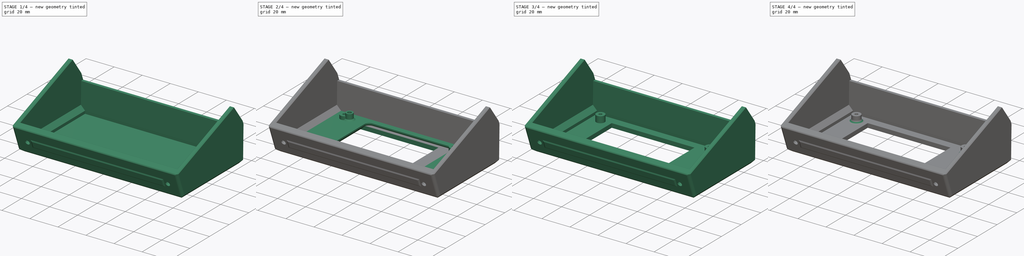
[diagram: build sequence overview — one tinted view per stage of 4, left to right]
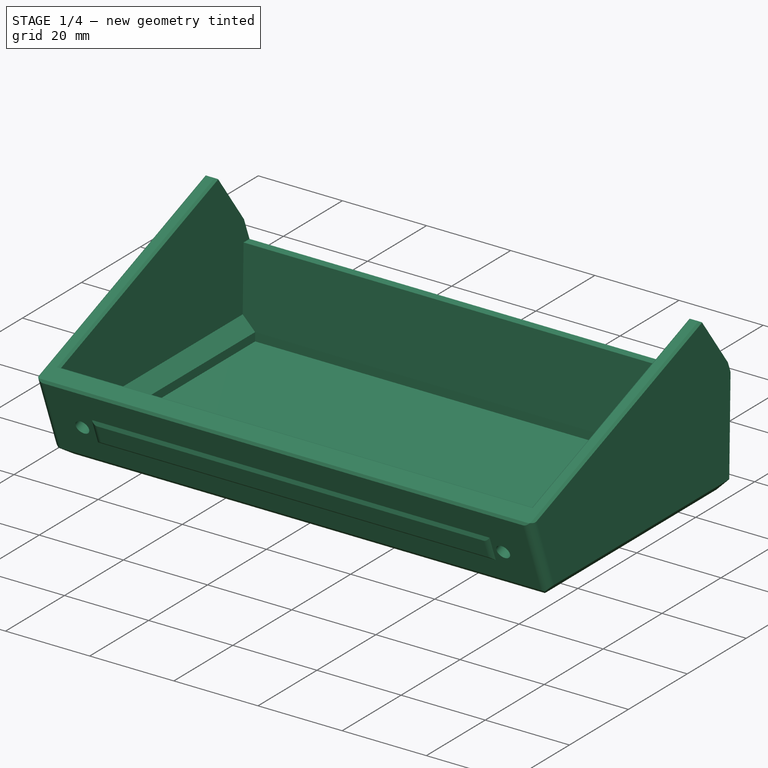
[diagram: stage 1 of 4 — iso view after this stage's code; geometry added in this stage tinted green]
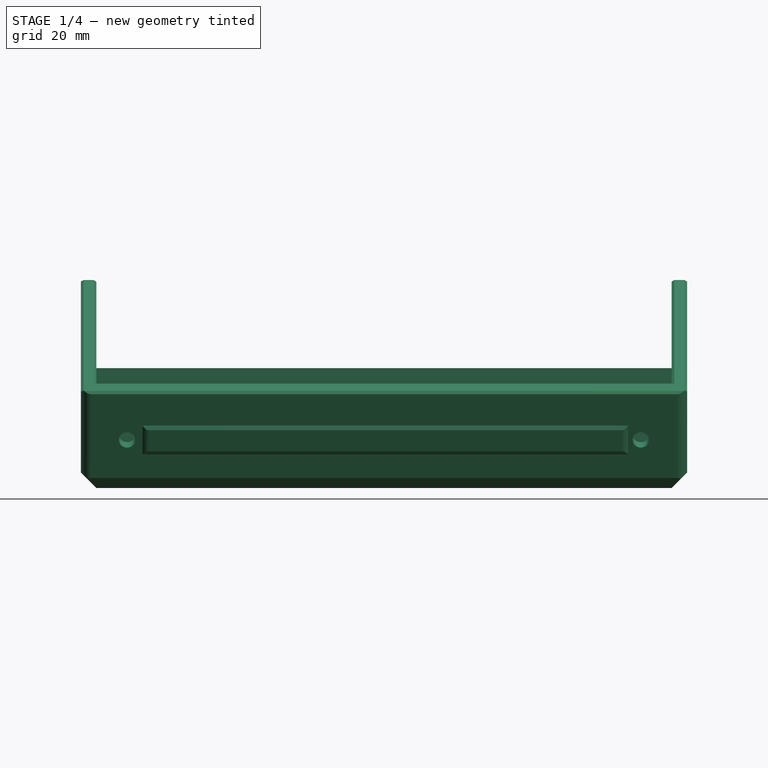
[diagram: stage 1 of 4 — front view after this stage's code; geometry added in this stage tinted green]
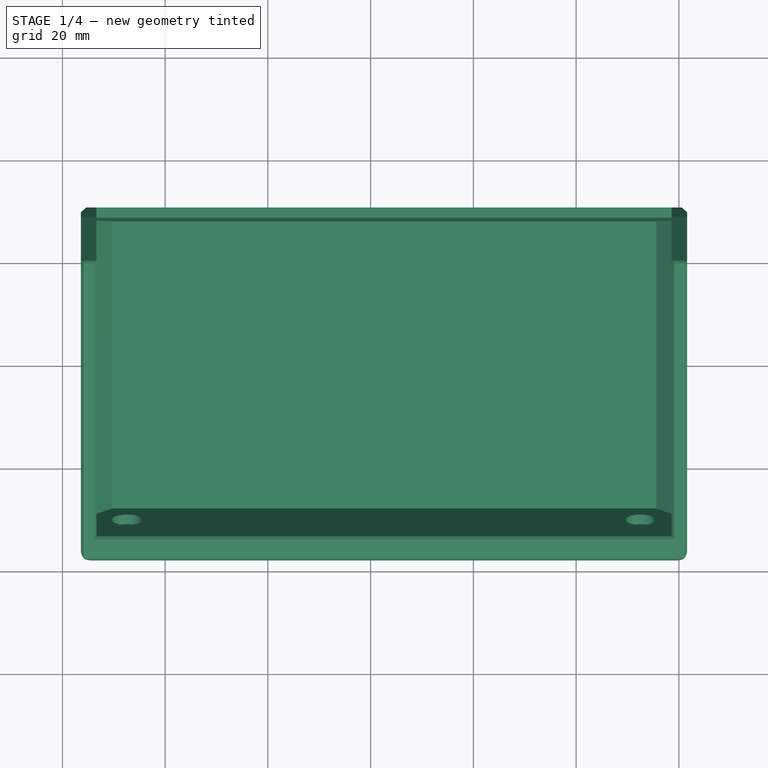
[diagram: stage 1 of 4 — top view after this stage's code; geometry added in this stage tinted green]
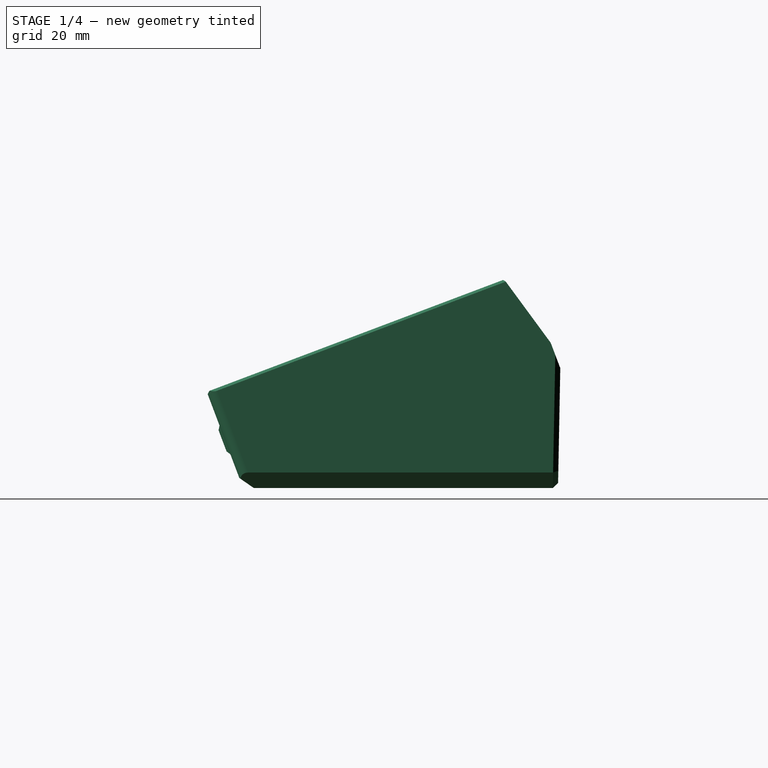
[diagram: stage 1 of 4 — right view after this stage's code; geometry added in this stage tinted green]
FCSTD DOCUMENT  (FreeCAD 0.22R36958 (Git))
Label: cyd housing for voron
License: All rights reserved
LicenseURL: http://en.wikipedia.org/wiki/All_rights_reserved
objects: Sketcher::SketchObject×12, PartDesign::Pocket×5, PartDesign::Pad×4, Part::Feature×3, PartDesign::FeatureBase×2, PartDesign::Body×2, PartDesign::Fillet×1, PartDesign::Chamfer×1
note: 41 computed .brp shape members not serialized (recipe doc carries the construction recipe); baked Part::Feature solids carry a one-line shape summary decoded from their .brp

FEATURE [Sketcher::SketchObject] Sketch013
  AttachmentSupport = -> [Pocket]
  FullyConstrained = true
  MapMode = 5
  Placement = pos=(0,-9.31488,24.6625) rot=(1,0,0;0.361131rad)
FEATURE [PartDesign::Body] Body003  label="my cyd housing"
  BaseFeature = -> Part__Feature
  Group = -> [BaseFeature001,Sketch008,Pocket002,Sketch009,Pad002,Sketch010,Sketch011,Pocket003,Sketch012,Pad003,Fillet001,Chamfer001,Sketch,Pocket,Sketch013]
  Origin = -> Origin003
  Tip = -> Pocket
FEATURE [Part::Feature] Part__Feature067  label="CYD_HOUSING001"
  Placement = pos=(6,0,0) rot=(0,0,1;0rad)
  shape: bbox 118 x 68.82 x 40.49 mm, 100 faces (baked)
FEATURE [PartDesign::FeatureBase] BaseFeature002
  BaseFeature = -> Part__Feature067
  Suppressed = false
FEATURE [Sketcher::SketchObject] Sketch015
  AttachmentOffset = pos=(0,0,11) rot=(0,0,1;0rad)
  AttachmentSupport = -> [BaseFeature002]
  ExternalGeometry = -> [BaseFeature002]
  FullyConstrained = true
  MapMode = 5
  Placement = pos=(0,0,11) rot=(0,0,1;0rad)
  sketch-geometry (4):
    g0: LineSegment StartX=-50.4 StartY=28.1407 StartZ=0 EndX=-50.4 EndY=-27.7904 EndZ=0
    g1: LineSegment StartX=-50.4 StartY=-27.7904 StartZ=0 EndX=55.6 EndY=-27.7904 EndZ=0
    g2: LineSegment StartX=55.6 StartY=-27.7904 StartZ=0 EndX=55.6 EndY=28.1407 EndZ=0
    g3: LineSegment StartX=55.6 StartY=28.1407 StartZ=0 EndX=-50.4 EndY=28.1407 EndZ=0
  constraints (10):
    c: Coincident(g0,g1)
    c: Coincident(g1,g2)
    c: Coincident(g2,g3)
    c: Coincident(g3,g0)
    c: Vertical(g0)
    c: Vertical(g2)
    c: Horizontal(g1)
    c: Horizontal(g3)
    c: Coincident(g1,g-4)
    c: Coincident(g0,g-3)
FEATURE [PartDesign::Pocket] Pocket005
  BaseFeature = -> BaseFeature002
  Direction = (0,0,-1)
  Length = 5
  Length2 = 5
  Profile = -> Sketch015
  ReferenceAxis = -> Sketch015 [N_Axis]
  Suppressed = false
  Type = 1
FEATURE [Sketcher::SketchObject] Sketch016
  AttachmentSupport = -> [Pocket005]
  ExternalGeometry = -> [Pocket005]
  FullyConstrained = true
  MapMode = 5
  Placement = pos=(0,0,-5) rot=(1,0,0;3.14159rad)
  sketch-geometry (4):
    g0: LineSegment StartX=-53.4 StartY=29.1729 StartZ=0 EndX=-53.4 EndY=-29.0471 EndZ=0
    g1: LineSegment StartX=-53.4 StartY=-29.0471 StartZ=0 EndX=58.6 EndY=-29.0471 EndZ=0
    g2: LineSegment StartX=58.6 StartY=-29.0471 StartZ=0 EndX=58.6 EndY=29.1729 EndZ=0
    g3: LineSegment StartX=58.6 StartY=29.1729 StartZ=0 EndX=-53.4 EndY=29.1729 EndZ=0
  constraints (10):
    c: Coincident(g0,g1)
    c: Coincident(g1,g2)
    c: Coincident(g2,g3)
    c: Coincident(g3,g0)
    c: Vertical(g0)
    c: Vertical(g2)
    c: Horizontal(g1)
    c: Horizontal(g3)
    c: Coincident(g0,g-3)
    c: Coincident(g1,g-4)
FEATURE [PartDesign::Pad] Pad004
  BaseFeature = -> Pocket005
  Direction = (0,0,-1)
  Length = 3
  Length2 = 10
  Profile = -> Sketch016
  ReferenceAxis = -> Sketch016 [N_Axis]
  Reversed = true
  Suppressed = false
  Type = 0
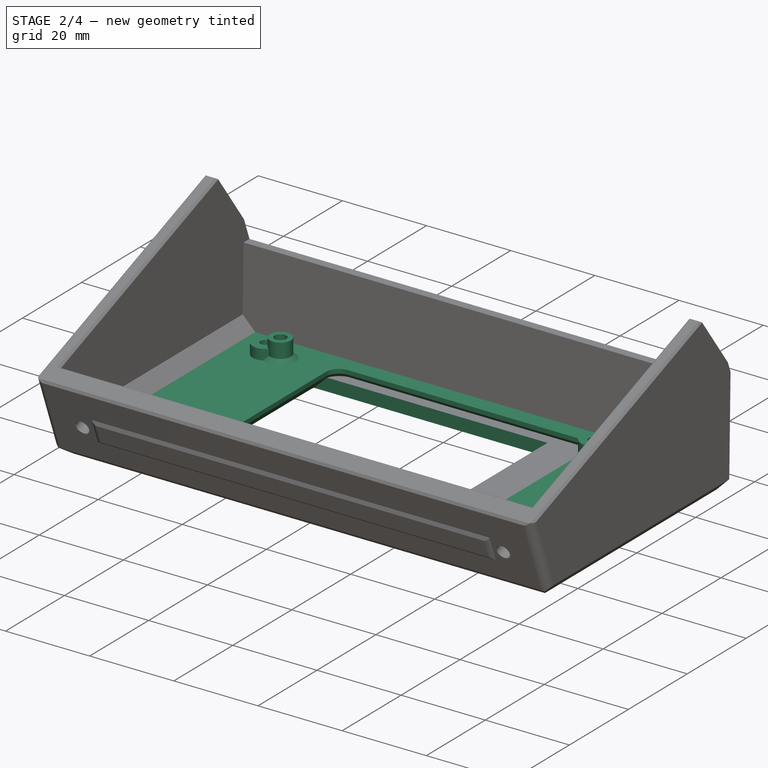
[diagram: stage 2 of 4 — iso view after this stage's code; geometry added in this stage tinted green]
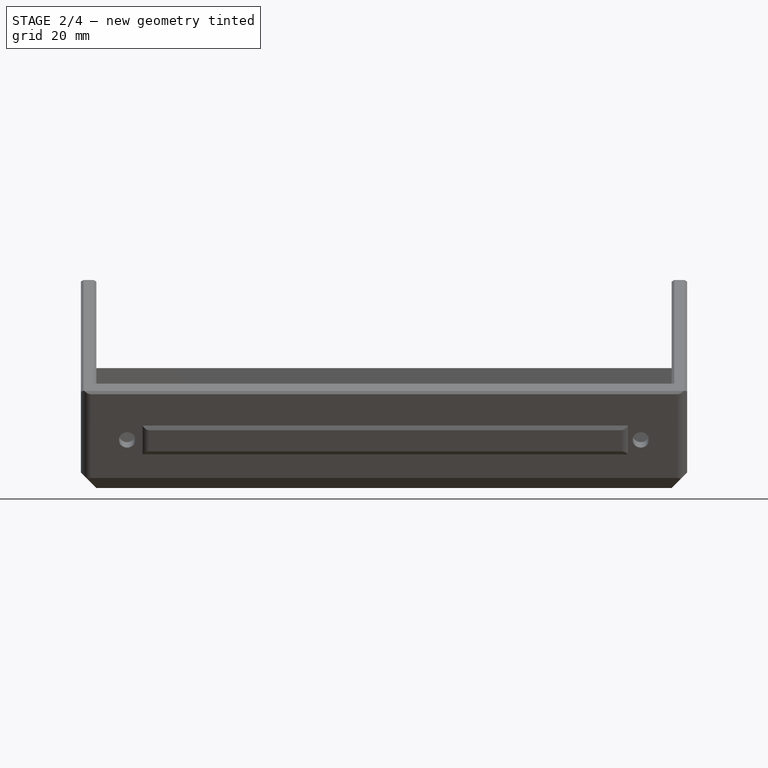
[diagram: stage 2 of 4 — front view after this stage's code; geometry added in this stage tinted green]
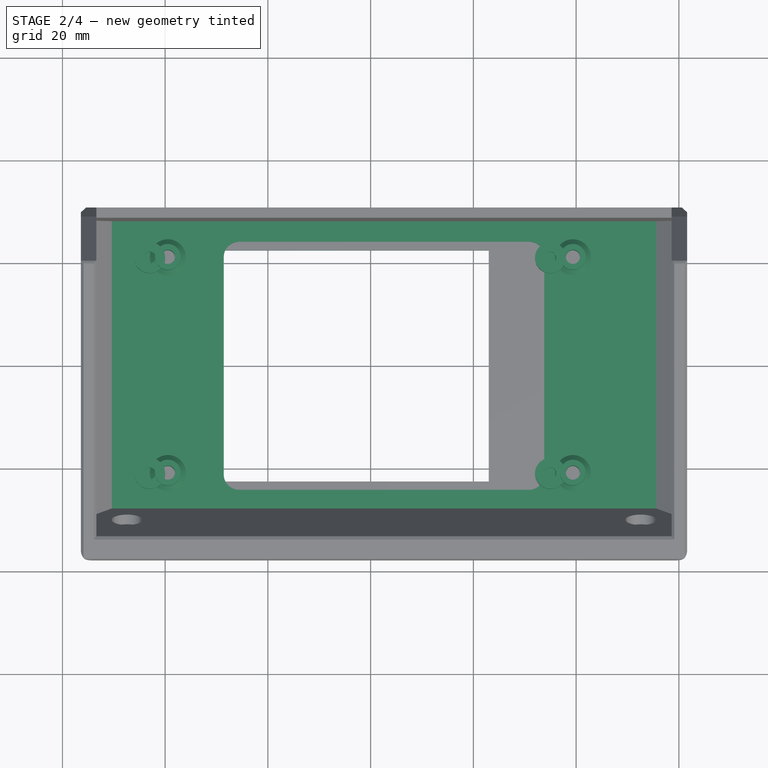
[diagram: stage 2 of 4 — top view after this stage's code; geometry added in this stage tinted green]
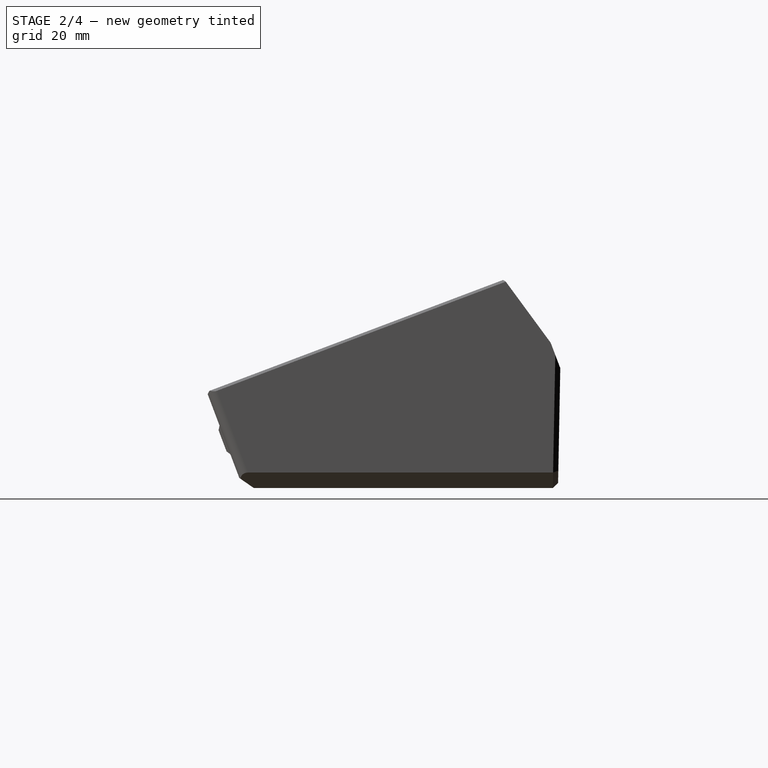
[diagram: stage 2 of 4 — right view after this stage's code; geometry added in this stage tinted green]
FEATURE [Part::Feature] Part__Feature  label="CYD_HOUSING"
  Placement = pos=(6,0,0) rot=(0,0,1;0rad)
  shape: bbox 118 x 68.82 x 40.49 mm, 100 faces (baked)
FEATURE [PartDesign::FeatureBase] BaseFeature001
  BaseFeature = -> Part__Feature
  Suppressed = false
FEATURE [Sketcher::SketchObject] Sketch017
  AttachmentOffset = pos=(0,0,4) rot=(0,0,1;0rad)
  AttachmentSupport = -> [XY_Plane004]
  FullyConstrained = true
  MapMode = 5
  Placement = pos=(0,0,4) rot=(0,0,1;0rad)
  sketch-geometry (8):
    g0: Circle CenterX=-43 CenterY=21 CenterZ=0 NormalX=0 NormalY=0 NormalZ=1 AngleXU=0 Radius=1.15
    g1: Circle CenterX=35 CenterY=21 CenterZ=0 NormalX=0 NormalY=0 NormalZ=1 AngleXU=0 Radius=1.15
    g2: Circle CenterX=35 CenterY=-21 CenterZ=0 NormalX=0 NormalY=0 NormalZ=1 AngleXU=0 Radius=1.15
    g3: Circle CenterX=-43 CenterY=-21 CenterZ=0 NormalX=0 NormalY=0 NormalZ=1 AngleXU=0 Radius=1.15
    g4: LineSegment StartX=-36 StartY=22.5 StartZ=0 EndX=-36 EndY=-22.5 EndZ=0
    g5: LineSegment StartX=-36 StartY=-22.5 StartZ=0 EndX=23 EndY=-22.5 EndZ=0
    g6: LineSegment StartX=23 StartY=-22.5 StartZ=0 EndX=23 EndY=22.5 EndZ=0
    g7: LineSegment StartX=23 StartY=22.5 StartZ=0 EndX=-36 EndY=22.5 EndZ=0
  constraints (25):
    c: Equal(g0,g3)
    c: Equal(g0,g1)
    c: Equal(g0,g2)
    c: Diameter(g0) = 2.3
    c: DistanceY(g6,g6) = 45
    c: DistanceX(g5,g5) = 59
    c: Equal(g6,g4)
    c: Equal(g7,g5)
    c: Vertical(g2,g1)
    c: Horizontal(g2,g3)
    c: DistanceX(g3,g2) = 78
    c: DistanceY(g2,g1) = 42
    c: DistanceY(g-1,g6) = 22.5
    c: Coincident(g6,g7)
    c: Vertical(g6)
    c: Vertical(g4)
    c: DistanceX(g7,g-1) = 36
    c: Coincident(g4,g7)
    c: Coincident(g5,g4)
    c: Horizontal(g7)
    c: Horizontal(g5)
    c: Vertical(g3,g0)
    c: DistanceY(g2,g-1) = 21
    c: DistanceX(g3,g-1) = 43
    c: Horizontal(g0,g1)
FEATURE [Sketcher::SketchObject] Sketch018
  AttachmentSupport = -> [XY_Plane004]
  ExternalGeometry = -> [Sketch017]
  FullyConstrained = true
  MapMode = 5
  sketch-geometry (4):
    g0: LineSegment StartX=23 StartY=-22.5 StartZ=0 EndX=23 EndY=22.5 EndZ=0
    g1: LineSegment StartX=23 StartY=22.5 StartZ=0 EndX=-36 EndY=22.5 EndZ=0
    g2: LineSegment StartX=-36 StartY=22.5 StartZ=0 EndX=-36 EndY=-22.5 EndZ=0
    g3: LineSegment StartX=-36 StartY=-22.5 StartZ=0 EndX=23 EndY=-22.5 EndZ=0
  constraints (10):
    c: Coincident(g0,g1)
    c: Coincident(g1,g2)
    c: Coincident(g2,g3)
    c: Coincident(g3,g0)
    c: Vertical(g0)
    c: Vertical(g2)
    c: Horizontal(g1)
    c: Horizontal(g3)
    c: Coincident(g0,g-5)
    c: Coincident(g1,g-6)
FEATURE [PartDesign::Pocket] Pocket006
  BaseFeature = -> Pad004
  Direction = (0,0,-1)
  Length = 5
  Length2 = 5
  Profile = -> Sketch018
  ReferenceAxis = -> Sketch018 [N_Axis]
  Suppressed = false
  Type = 0
FEATURE [Sketcher::SketchObject] Sketch019
  AttachmentOffset = pos=(0,0,-2) rot=(0,0,1;0rad)
  AttachmentSupport = -> [XY_Plane004]
  ExternalGeometry = -> [Sketch017]
  FullyConstrained = true
  MapMode = 5
  Placement = pos=(0,0,-2) rot=(0,0,1;0rad)
  sketch-geometry (8):
    g0: Circle CenterX=-43 CenterY=21 CenterZ=0 NormalX=0 NormalY=0 NormalZ=1 AngleXU=0 Radius=1.15
    g1: Circle CenterX=-43 CenterY=-21 CenterZ=0 NormalX=0 NormalY=0 NormalZ=1 AngleXU=0 Radius=1.15
    g2: Circle CenterX=35 CenterY=-21 CenterZ=0 NormalX=0 NormalY=0 NormalZ=1 AngleXU=0 Radius=1.15
    g3: Circle CenterX=35 CenterY=21 CenterZ=0 NormalX=0 NormalY=0 NormalZ=1 AngleXU=0 Radius=1.15
    g4: Circle CenterX=-43 CenterY=21 CenterZ=0 NormalX=0 NormalY=0 NormalZ=1 AngleXU=0 Radius=3
    g5: Circle CenterX=35 CenterY=21 CenterZ=0 NormalX=0 NormalY=0 NormalZ=1 AngleXU=0 Radius=3
    g6: Circle CenterX=35 CenterY=-21 CenterZ=0 NormalX=0 NormalY=0 NormalZ=1 AngleXU=0 Radius=3
    g7: Circle CenterX=-43 CenterY=-21 CenterZ=0 NormalX=0 NormalY=0 NormalZ=1 AngleXU=0 Radius=3
  constraints (24):
    c: Coincident(g0,g-3)
    c: Coincident(g1,g-5)
    c: Coincident(g2,g-6)
    c: Coincident(g3,g-4)
    c: Diameter(g-6) = 2.3
    c: Diameter(g-5) = 2.3
    c: Diameter(g-4) = 2.3
    c: Diameter(g-3) = 2.3
    c: Equal(g0,g1)
    c: Equal(g0,g2)
    c: Equal(g0,g3)
    c: Diameter(g0) = 2.3
    c: Coincident(g4,g0)
    c: Coincident(g5,g3)
    c: Coincident(g6,g2)
    c: Coincident(g7,g1)
    c: Diameter(g-3) = 2.3
    c: Diameter(g-4) = 2.3
    c: Diameter(g-5) = 2.3
    c: Diameter(g-6) = 2.3
    c: Equal(g4,g5)
    c: Equal(g4,g6)
    c: Equal(g4,g7)
    c: Diameter(g4) = 6
FEATURE [PartDesign::Pad] Pad005
  BaseFeature = -> Pocket006
  Direction = (0,0,1)
  Length = 4.5
  Length2 = 10
  Profile = -> Sketch019
  ReferenceAxis = -> Sketch019 [N_Axis]
  Suppressed = false
  Type = 0
FEATURE [PartDesign::Body] Body004  label="my cyd housing usb open"
  BaseFeature = -> Part__Feature067
  Group = -> [BaseFeature002,Sketch015,Pocket005,Sketch016,Pad004,Sketch017,Sketch018,Pocket006,Sketch019,Pad005]
  Origin = -> Origin004
  Tip = -> Pad005
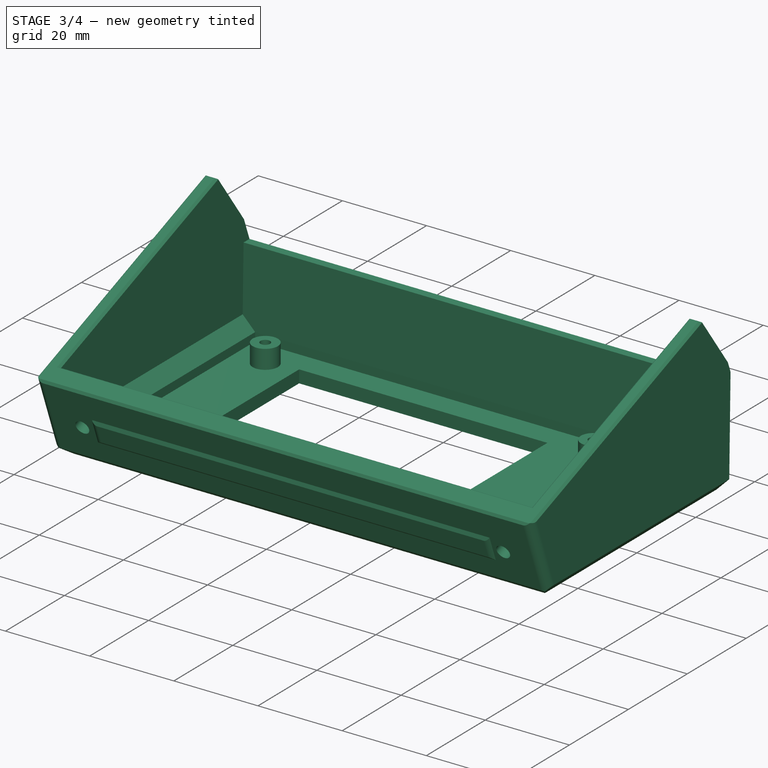
[diagram: stage 3 of 4 — iso view after this stage's code; geometry added in this stage tinted green]
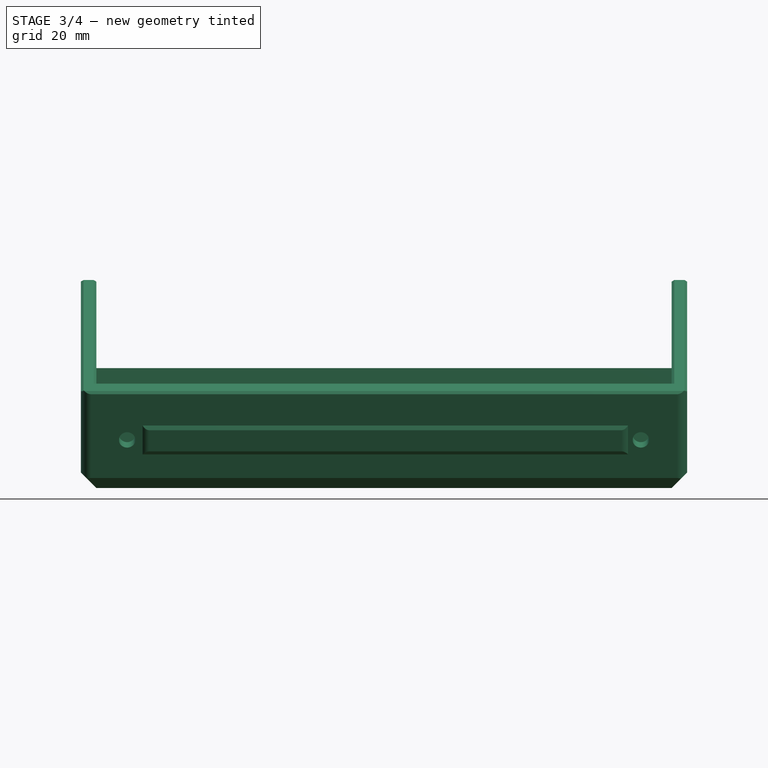
[diagram: stage 3 of 4 — front view after this stage's code; geometry added in this stage tinted green]
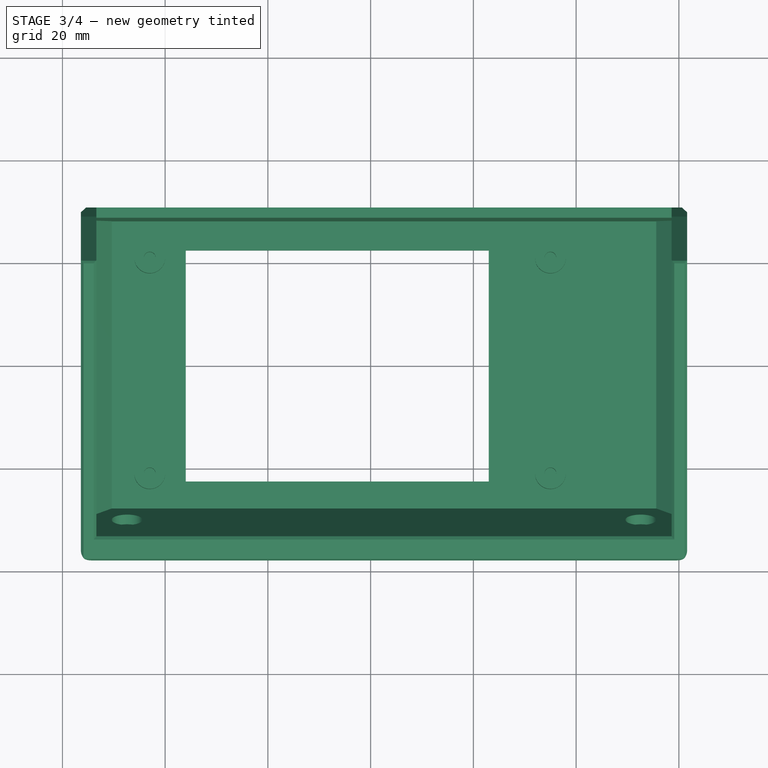
[diagram: stage 3 of 4 — top view after this stage's code; geometry added in this stage tinted green]
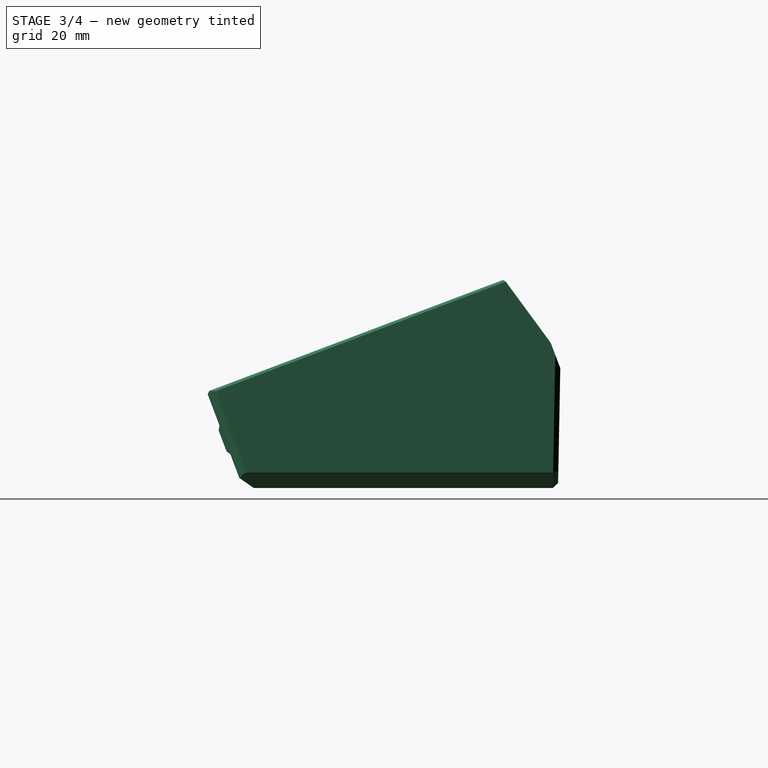
[diagram: stage 3 of 4 — right view after this stage's code; geometry added in this stage tinted green]
FEATURE [Sketcher::SketchObject] Sketch008
  AttachmentOffset = pos=(0,0,11) rot=(0,0,1;0rad)
  AttachmentSupport = -> [BaseFeature001]
  ExternalGeometry = -> [BaseFeature001]
  FullyConstrained = true
  MapMode = 5
  Placement = pos=(0,0,11) rot=(0,0,1;0rad)
  sketch-geometry (4):
    g0: LineSegment StartX=-50.4 StartY=28.1407 StartZ=0 EndX=-50.4 EndY=-27.7904 EndZ=0
    g1: LineSegment StartX=-50.4 StartY=-27.7904 StartZ=0 EndX=55.6 EndY=-27.7904 EndZ=0
    g2: LineSegment StartX=55.6 StartY=-27.7904 StartZ=0 EndX=55.6 EndY=28.1407 EndZ=0
    g3: LineSegment StartX=55.6 StartY=28.1407 StartZ=0 EndX=-50.4 EndY=28.1407 EndZ=0
  constraints (10):
    c: Coincident(g0,g1)
    c: Coincident(g1,g2)
    c: Coincident(g2,g3)
    c: Coincident(g3,g0)
    c: Vertical(g0)
    c: Vertical(g2)
    c: Horizontal(g1)
    c: Horizontal(g3)
    c: Coincident(g1,g-4)
    c: Coincident(g0,g-3)
FEATURE [PartDesign::Pocket] Pocket002
  BaseFeature = -> BaseFeature001
  Direction = (0,0,-1)
  Length = 5
  Length2 = 5
  Profile = -> Sketch008
  ReferenceAxis = -> Sketch008 [N_Axis]
  Suppressed = false
  Type = 1
FEATURE [Sketcher::SketchObject] Sketch009
  AttachmentSupport = -> [Pocket002]
  ExternalGeometry = -> [Pocket002]
  FullyConstrained = true
  MapMode = 5
  Placement = pos=(0,0,-5) rot=(1,0,0;3.14159rad)
  sketch-geometry (4):
    g0: LineSegment StartX=-53.4 StartY=29.1729 StartZ=0 EndX=-53.4 EndY=-29.0471 EndZ=0
    g1: LineSegment StartX=-53.4 StartY=-29.0471 StartZ=0 EndX=58.6 EndY=-29.0471 EndZ=0
    g2: LineSegment StartX=58.6 StartY=-29.0471 StartZ=0 EndX=58.6 EndY=29.1729 EndZ=0
    g3: LineSegment StartX=58.6 StartY=29.1729 StartZ=0 EndX=-53.4 EndY=29.1729 EndZ=0
  constraints (10):
    c: Coincident(g0,g1)
    c: Coincident(g1,g2)
    c: Coincident(g2,g3)
    c: Coincident(g3,g0)
    c: Vertical(g0)
    c: Vertical(g2)
    c: Horizontal(g1)
    c: Horizontal(g3)
    c: Coincident(g0,g-3)
    c: Coincident(g1,g-4)
FEATURE [PartDesign::Pad] Pad002
  BaseFeature = -> Pocket002
  Direction = (0,0,-1)
  Length = 3
  Length2 = 10
  Profile = -> Sketch009
  ReferenceAxis = -> Sketch009 [N_Axis]
  Reversed = true
  Suppressed = false
  Type = 0
FEATURE [Sketcher::SketchObject] Sketch010
  AttachmentOffset = pos=(0,0,4) rot=(0,0,1;0rad)
  AttachmentSupport = -> [XY_Plane003]
  FullyConstrained = true
  MapMode = 5
  Placement = pos=(0,0,4) rot=(0,0,1;0rad)
  sketch-geometry (8):
    g0: Circle CenterX=-43 CenterY=21 CenterZ=0 NormalX=0 NormalY=0 NormalZ=1 AngleXU=0 Radius=1.15
    g1: Circle CenterX=35 CenterY=21 CenterZ=0 NormalX=0 NormalY=0 NormalZ=1 AngleXU=0 Radius=1.15
    g2: Circle CenterX=35 CenterY=-21 CenterZ=0 NormalX=0 NormalY=0 NormalZ=1 AngleXU=0 Radius=1.15
    g3: Circle CenterX=-43 CenterY=-21 CenterZ=0 NormalX=0 NormalY=0 NormalZ=1 AngleXU=0 Radius=1.15
    g4: LineSegment StartX=-36 StartY=22.5 StartZ=0 EndX=-36 EndY=-22.5 EndZ=0
    g5: LineSegment StartX=-36 StartY=-22.5 StartZ=0 EndX=23 EndY=-22.5 EndZ=0
    g6: LineSegment StartX=23 StartY=-22.5 StartZ=0 EndX=23 EndY=22.5 EndZ=0
    g7: LineSegment StartX=23 StartY=22.5 StartZ=0 EndX=-36 EndY=22.5 EndZ=0
  constraints (25):
    c: Equal(g0,g3)
    c: Equal(g0,g1)
    c: Equal(g0,g2)
    c: Diameter(g0) = 2.3
    c: DistanceY(g6,g6) = 45
    c: DistanceX(g5,g5) = 59
    c: Equal(g6,g4)
    c: Equal(g7,g5)
    c: Vertical(g2,g1)
    c: Horizontal(g2,g3)
    c: DistanceX(g3,g2) = 78
    c: DistanceY(g2,g1) = 42
    c: DistanceY(g-1,g6) = 22.5
    c: Coincident(g6,g7)
    c: Vertical(g6)
    c: Vertical(g4)
    c: DistanceX(g7,g-1) = 36
    c: Coincident(g4,g7)
    c: Coincident(g5,g4)
    c: Horizontal(g7)
    c: Horizontal(g5)
    c: Vertical(g3,g0)
    c: DistanceY(g2,g-1) = 21
    c: DistanceX(g3,g-1) = 43
    c: Horizontal(g0,g1)
FEATURE [Sketcher::SketchObject] Sketch011
  AttachmentSupport = -> [XY_Plane003]
  ExternalGeometry = -> [Sketch010]
  FullyConstrained = true
  MapMode = 5
  sketch-geometry (4):
    g0: LineSegment StartX=23 StartY=-22.5 StartZ=0 EndX=23 EndY=22.5 EndZ=0
    g1: LineSegment StartX=23 StartY=22.5 StartZ=0 EndX=-36 EndY=22.5 EndZ=0
    g2: LineSegment StartX=-36 StartY=22.5 StartZ=0 EndX=-36 EndY=-22.5 EndZ=0
    g3: LineSegment StartX=-36 StartY=-22.5 StartZ=0 EndX=23 EndY=-22.5 EndZ=0
  constraints (10):
    c: Coincident(g0,g1)
    c: Coincident(g1,g2)
    c: Coincident(g2,g3)
    c: Coincident(g3,g0)
    c: Vertical(g0)
    c: Vertical(g2)
    c: Horizontal(g1)
    c: Horizontal(g3)
    c: Coincident(g0,g-5)
    c: Coincident(g1,g-6)
FEATURE [PartDesign::Pocket] Pocket003
  BaseFeature = -> Pad002
  Direction = (0,0,-1)
  Length = 5
  Length2 = 5
  Profile = -> Sketch011
  ReferenceAxis = -> Sketch011 [N_Axis]
  Suppressed = false
  Type = 0
FEATURE [Sketcher::SketchObject] Sketch012
  AttachmentOffset = pos=(0,0,-2) rot=(0,0,1;0rad)
  AttachmentSupport = -> [XY_Plane003]
  ExternalGeometry = -> [Sketch010]
  FullyConstrained = true
  MapMode = 5
  Placement = pos=(0,0,-2) rot=(0,0,1;0rad)
  sketch-geometry (8):
    g0: Circle CenterX=-43 CenterY=21 CenterZ=0 NormalX=0 NormalY=0 NormalZ=1 AngleXU=0 Radius=1.15
    g1: Circle CenterX=-43 CenterY=-21 CenterZ=0 NormalX=0 NormalY=0 NormalZ=1 AngleXU=0 Radius=1.15
    g2: Circle CenterX=35 CenterY=-21 CenterZ=0 NormalX=0 NormalY=0 NormalZ=1 AngleXU=0 Radius=1.15
    g3: Circle CenterX=35 CenterY=21 CenterZ=0 NormalX=0 NormalY=0 NormalZ=1 AngleXU=0 Radius=1.15
    g4: Circle CenterX=-43 CenterY=21 CenterZ=0 NormalX=0 NormalY=0 NormalZ=1 AngleXU=0 Radius=3
    g5: Circle CenterX=35 CenterY=21 CenterZ=0 NormalX=0 NormalY=0 NormalZ=1 AngleXU=0 Radius=3
    g6: Circle CenterX=35 CenterY=-21 CenterZ=0 NormalX=0 NormalY=0 NormalZ=1 AngleXU=0 Radius=3
    g7: Circle CenterX=-43 CenterY=-21 CenterZ=0 NormalX=0 NormalY=0 NormalZ=1 AngleXU=0 Radius=3
  constraints (24):
    c: Coincident(g0,g-3)
    c: Coincident(g1,g-5)
    c: Coincident(g2,g-6)
    c: Coincident(g3,g-4)
    c: Diameter(g-6) = 2.3
    c: Diameter(g-5) = 2.3
    c: Diameter(g-4) = 2.3
    c: Diameter(g-3) = 2.3
    c: Equal(g0,g1)
    c: Equal(g0,g2)
    c: Equal(g0,g3)
    c: Diameter(g0) = 2.3
    c: Coincident(g4,g0)
    c: Coincident(g5,g3)
    c: Coincident(g6,g2)
    c: Coincident(g7,g1)
    c: Diameter(g-3) = 2.3
    c: Diameter(g-4) = 2.3
    c: Diameter(g-5) = 2.3
    c: Diameter(g-6) = 2.3
    c: Equal(g4,g5)
    c: Equal(g4,g6)
    c: Equal(g4,g7)
    c: Diameter(g4) = 6
FEATURE [PartDesign::Pad] Pad003
  BaseFeature = -> Pocket003
  Direction = (0,0,1)
  Length = 4.5
  Length2 = 10
  Profile = -> Sketch012
  ReferenceAxis = -> Sketch012 [N_Axis]
  Suppressed = false
  Type = 0
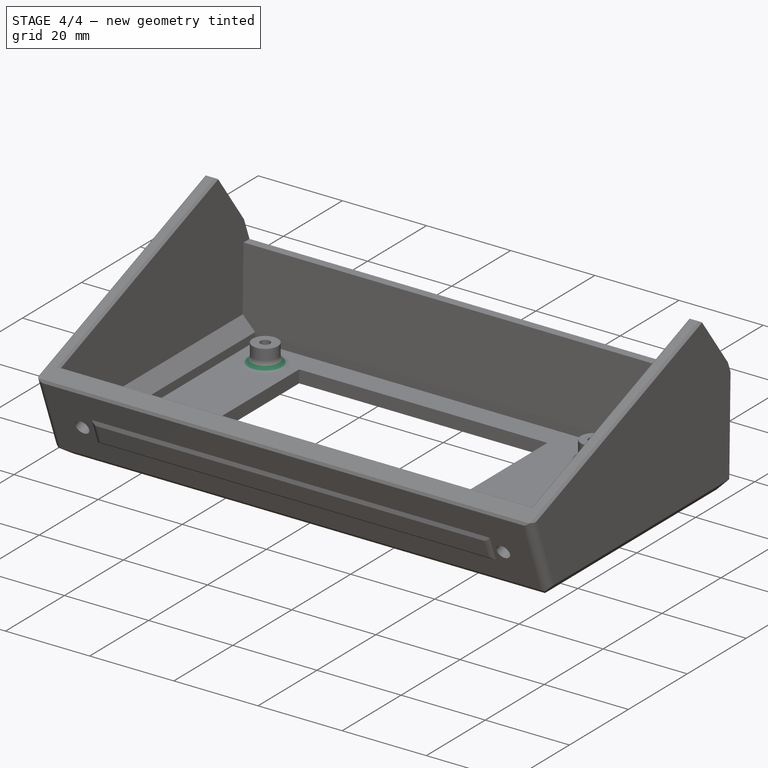
[diagram: stage 4 of 4 — iso view after this stage's code; geometry added in this stage tinted green]
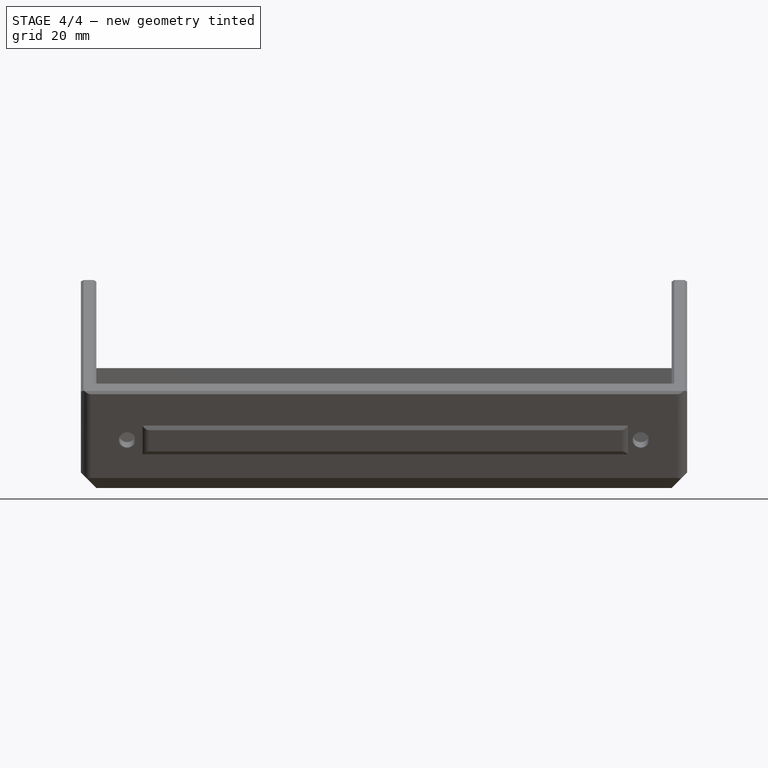
[diagram: stage 4 of 4 — front view after this stage's code; geometry added in this stage tinted green]
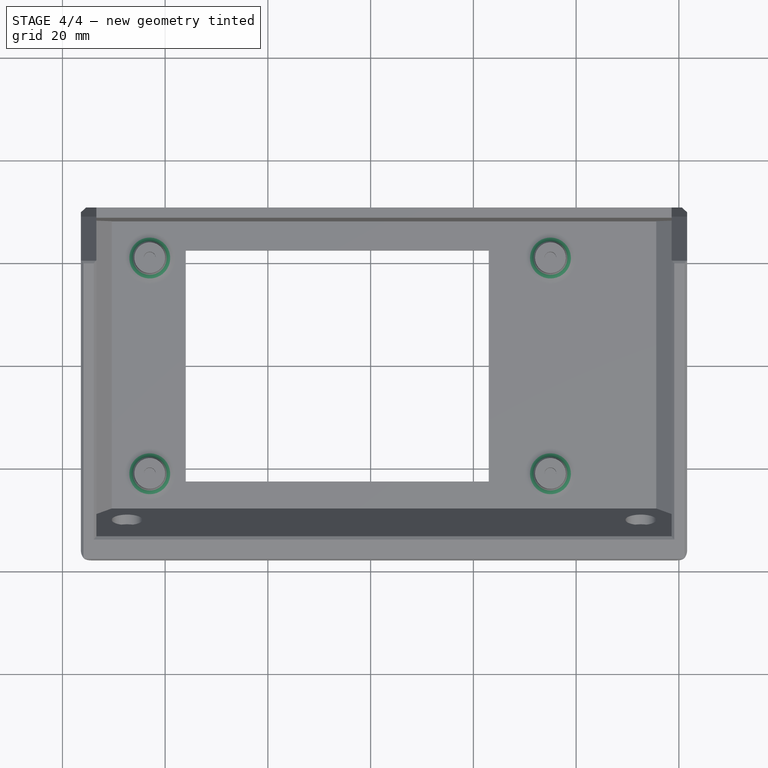
[diagram: stage 4 of 4 — top view after this stage's code; geometry added in this stage tinted green]
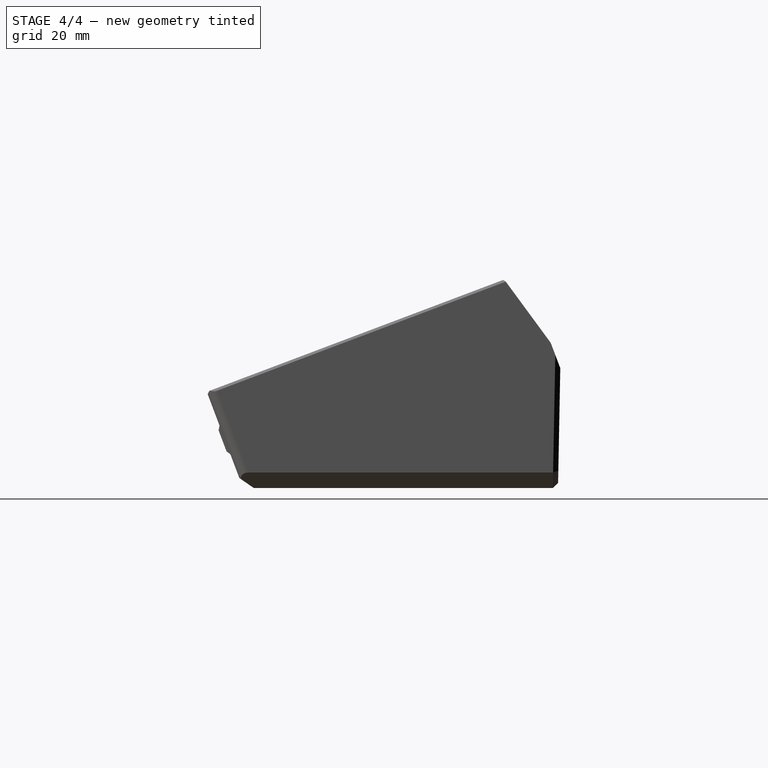
[diagram: stage 4 of 4 — right view after this stage's code; geometry added in this stage tinted green]
FEATURE [PartDesign::Fillet] Fillet001
  Base = -> Pad003 [Edge124,Edge122,Edge123,Edge125]
  BaseFeature = -> Pad003
  Radius = 2
  Refine = true
  SupportTransform = false
  Suppressed = false
  UseAllEdges = false
FEATURE [PartDesign::Chamfer] Chamfer001
  Angle = 45
  Base = -> Fillet001 [Edge62,Edge57,Edge59,Edge63]
  BaseFeature = -> Fillet001
  ChamferType = 0
  FlipDirection = false
  Size = 2.5
  Size2 = 1
  SupportTransform = false
  Suppressed = false
  UseAllEdges = false
FEATURE [Part::Feature] Part__Feature066  label="Display001"
  Placement = pos=(-4,5e-16,4) rot=(1,0,0;3.14159rad)
  shape: bbox 86.6 x 50 x 9.8 mm, 98 faces (baked)
FEATURE [Sketcher::SketchObject] Sketch
  AttachmentSupport = -> [Chamfer001]
  FullyConstrained = false
  MapMode = 5
  Placement = pos=(61.6,0,0) rot=(0.57735,0.57735,0.57735;2.0944rad)
  sketch-geometry (4):
    g0: LineSegment StartX=-3.02214 StartY=13.6836 StartZ=0 EndX=-3.02214 EndY=0.296463 EndZ=0
    g1: LineSegment StartX=-3.02214 StartY=0.296463 StartZ=0 EndX=22.1743 EndY=0.296463 EndZ=0
    g2: LineSegment StartX=22.1743 StartY=0.296463 StartZ=0 EndX=22.1743 EndY=13.6836 EndZ=0
    g3: LineSegment StartX=22.1743 StartY=13.6836 StartZ=0 EndX=-3.02214 EndY=13.6836 EndZ=0
  constraints (8):
    c: Coincident(g0,g1)
    c: Coincident(g1,g2)
    c: Coincident(g2,g3)
    c: Coincident(g3,g0)
    c: Vertical(g0)
    c: Vertical(g2)
    c: Horizontal(g1)
    c: Horizontal(g3)
FEATURE [PartDesign::Pocket] Pocket
  BaseFeature = -> Chamfer001
  Direction = (-1,0,0)
  Length = 5
  Length2 = 5
  Profile = -> Sketch
  ReferenceAxis = -> Sketch [N_Axis]
  Suppressed = false
  Type = 0
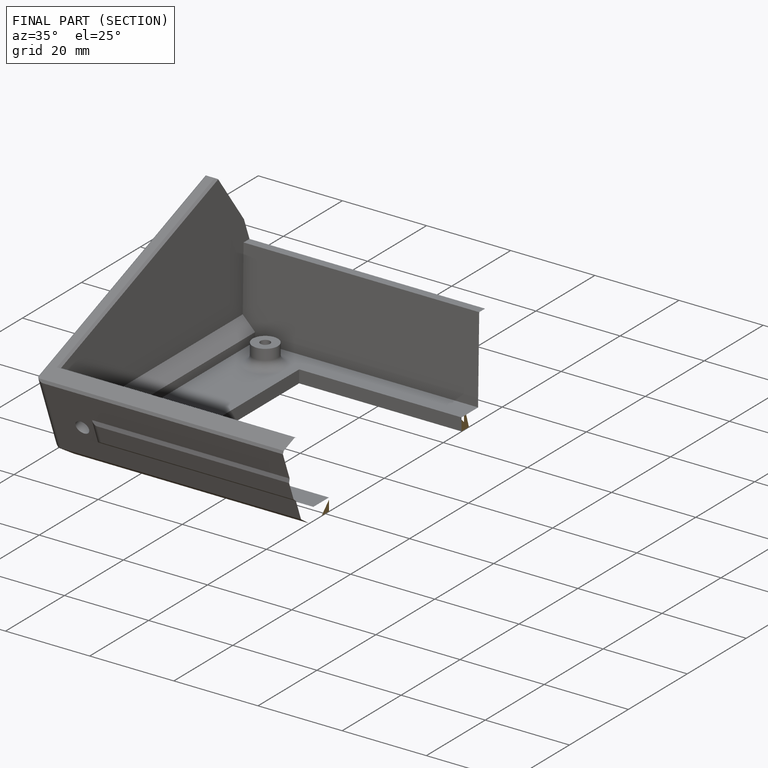
[diagram: finished part — half-section view (interior)]
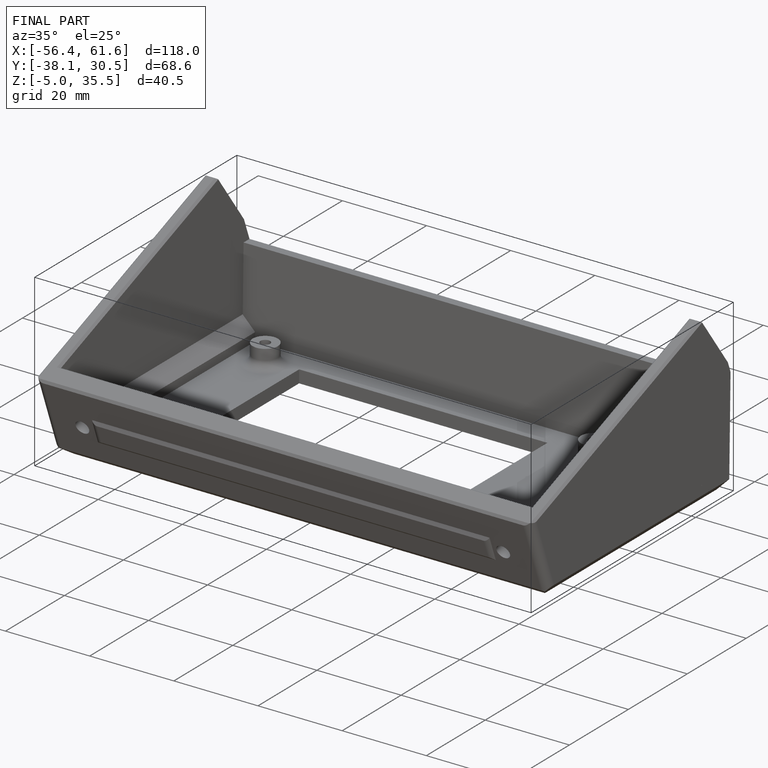
[diagram: finished part — iso view with bounding-box wireframe]
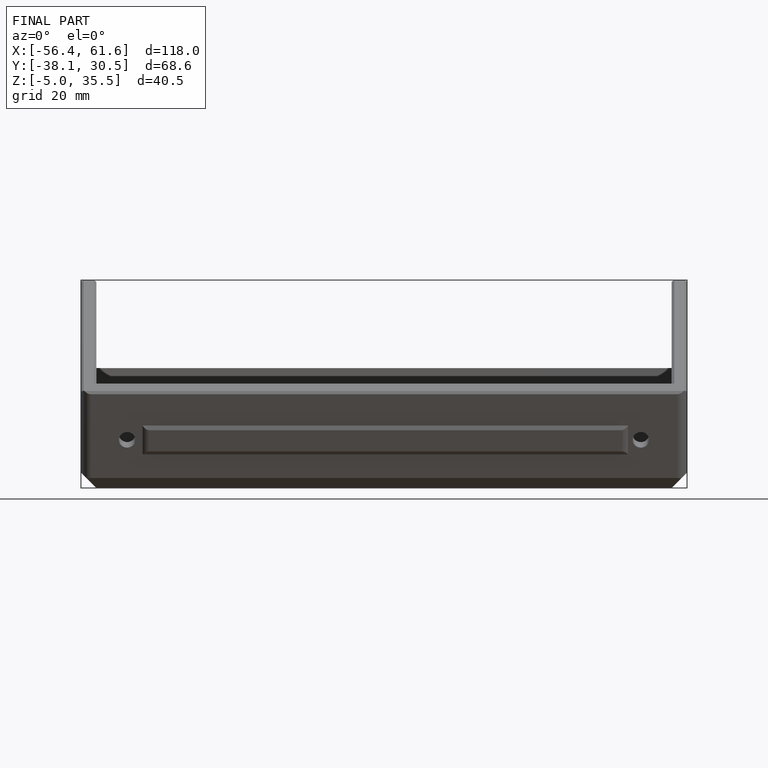
[diagram: finished part — front view with bounding-box wireframe]
